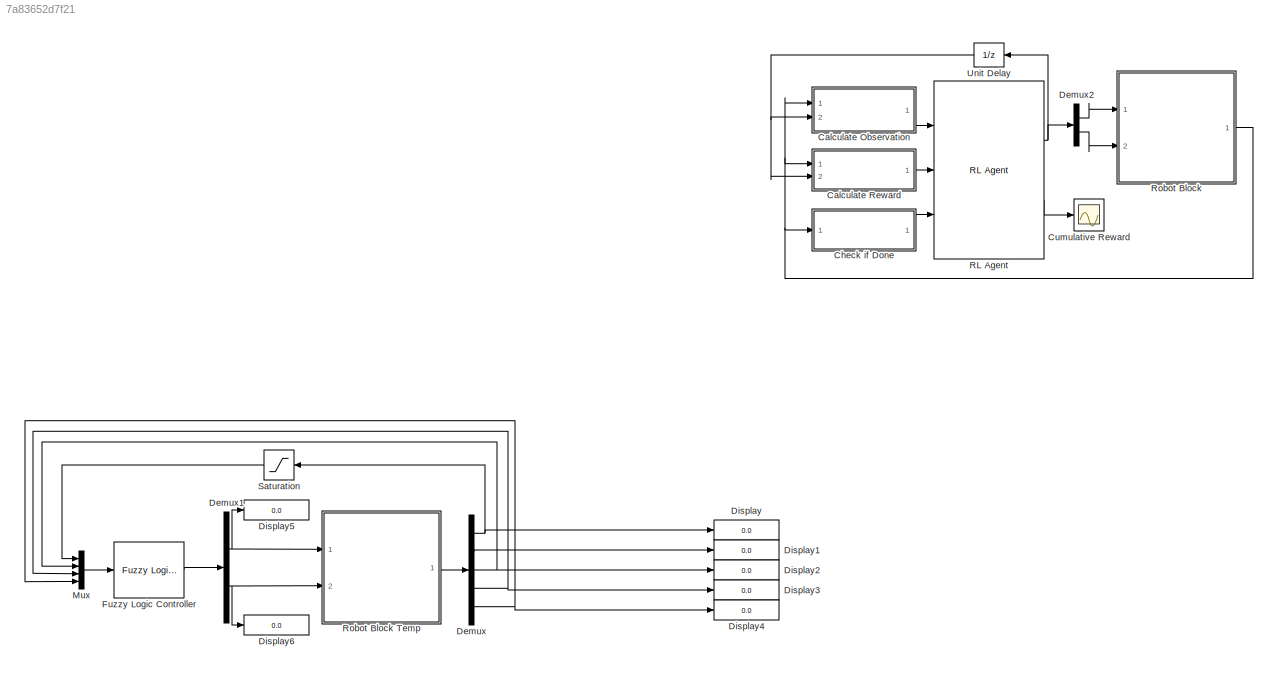
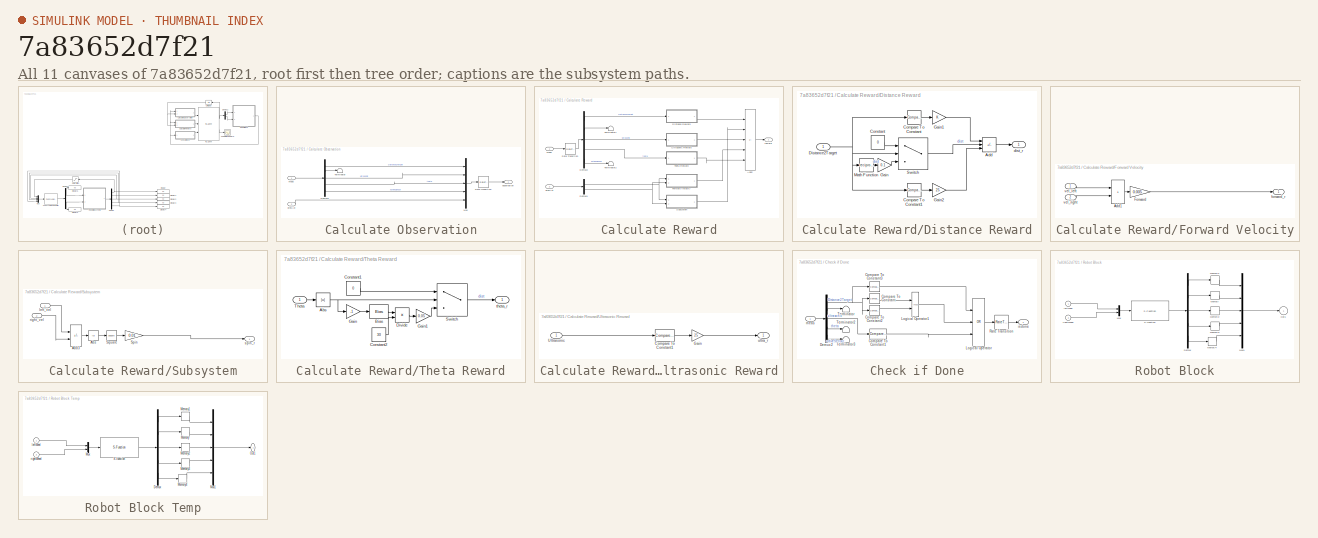
[diagram: thumbnail index - all 11 canvases of the model, root first then tree order]
MODEL slx_7a83652d7f21
KIND model
CONFIG AbsTol = auto
CONFIG EnableMultiTasking = off
CONFIG FixedStep = 0.050
CONFIG MaxStep = auto
CONFIG MinStep = auto
CONFIG RelTol = 1e-3
CONFIG SampleTimeConstraint = Unconstrained
CONFIG Solver = ode45
CONFIG SolverName = ode45
CONFIG StartTime = 0.0
CONFIG StopTime = inf
WORKSPACE source: mxarray member
WORKSPACE ANG = 2
WORKSPACE Sig: Simulink.Signal (value not decoded)
WORKSPACE Var = 0
WORKSPACE X = 1
WORKSPACE Y = 1
BLOCK [SubSystem] Calculate Observation
  Ports = [2, 1]
  RequestExecContextInheritance = off
BLOCK [Demux] Calculate Observation/Demux2
  Outputs = 5
  Ports = [1, 5]
BLOCK [Mux] Calculate Observation/Mux
  DisplayOption = bar
  Inputs = 5
  Ports = [5, 1]
BLOCK [RateTransition] Calculate Observation/Rate Transition
BLOCK [Terminator] Calculate Observation/Terminator
BLOCK [Inport] Calculate Observation/meas
BLOCK [Outport] Calculate Observation/observation
  VectorParamsAs1DForOutWhenUnconnected = off
BLOCK [Inport] Calculate Observation/prevAct
  Port = 2
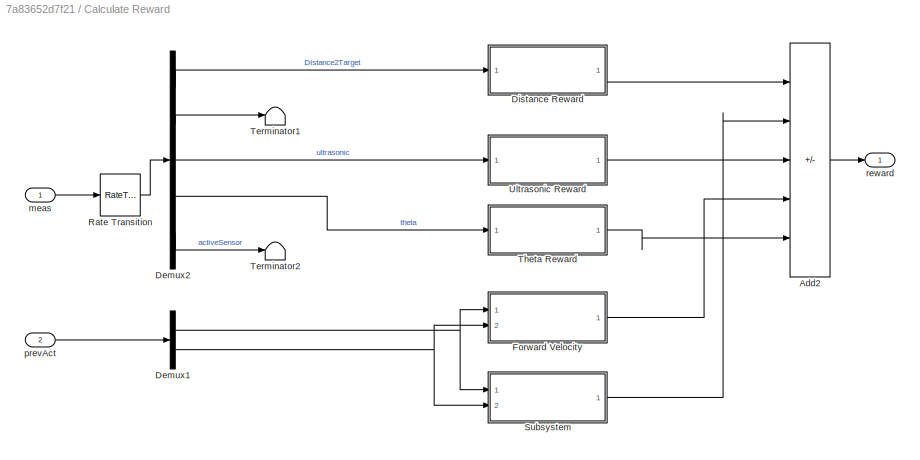
BLOCK [SubSystem] Calculate Reward
  Ports = [2, 1]
  RequestExecContextInheritance = off
BLOCK [Sum] Calculate Reward/Add2
  IconShape = rectangular
  Inputs = +--++
  Ports = [5, 1]
BLOCK [Demux] Calculate Reward/Demux1
  Outputs = 2
  Ports = [1, 2]
BLOCK [Demux] Calculate Reward/Demux2
  Outputs = 5
  Ports = [1, 5]
BLOCK [SubSystem] Calculate Reward/Distance Reward
  Ports = [1, 1]
  RequestExecContextInheritance = off
BLOCK [Sum] Calculate Reward/Distance Reward/Add
  IconShape = rectangular
  Inputs = -++
  Ports = [3, 1]
BLOCK [Reference] Calculate Reward/Distance Reward/Compare To Constant  REF=simulink/Logic and Bit
Operations/Compare
To Constant
  Ports = [1, 1]
  SourceBlock = simulink/Logic and Bit\nOperations/Compare\nTo Constant
  SourceProductBaseCode = SL
  SourceType = Compare To Constant
BLOCK [Reference] Calculate Reward/Distance Reward/Compare To Constant1  REF=simulink/Logic and Bit
Operations/Compare
To Constant
  Ports = [1, 1]
  SourceBlock = simulink/Logic and Bit\nOperations/Compare\nTo Constant
  SourceProductBaseCode = SL
  SourceType = Compare To Constant
BLOCK [Constant] Calculate Reward/Distance Reward/Constant
  Value = 0
BLOCK [Inport] Calculate Reward/Distance Reward/Distance2Target
BLOCK [Gain] Calculate Reward/Distance Reward/Gain
  Gain = 0.1
BLOCK [Gain] Calculate Reward/Distance Reward/Gain1
BLOCK [Gain] Calculate Reward/Distance Reward/Gain2
  Gain = 25
BLOCK [Math] Calculate Reward/Distance Reward/Math Function
  Operator = reciprocal
  Ports = [1, 1]
BLOCK [Switch] Calculate Reward/Distance Reward/Switch
  InputSameDT = off
  SaturateOnIntegerOverflow = off
  Threshold = 2
BLOCK [Outport] Calculate Reward/Distance Reward/dist_r
BLOCK [SubSystem] Calculate Reward/Forward Velocity
  Ports = [2, 1]
  RequestExecContextInheritance = off
BLOCK [Sum] Calculate Reward/Forward Velocity/Add1
  IconShape = rectangular
  Ports = [2, 1]
BLOCK [Gain] Calculate Reward/Forward Velocity/Forward
  Gain = 0.005
BLOCK [Outport] Calculate Reward/Forward Velocity/forward_r
BLOCK [Inport] Calculate Reward/Forward Velocity/vel_left
BLOCK [Inport] Calculate Reward/Forward Velocity/vel_right
  Port = 2
BLOCK [RateTransition] Calculate Reward/Rate Transition
  OutPortSampleTime = Ts
BLOCK [SubSystem] Calculate Reward/Subsystem
  Ports = [2, 1]
  RequestExecContextInheritance = off
BLOCK [Abs] Calculate Reward/Subsystem/Abs
  SaturateOnIntegerOverflow = off
BLOCK [Sum] Calculate Reward/Subsystem/Add3
  IconShape = rectangular
  Inputs = +-
  Ports = [2, 1]
BLOCK [Gain] Calculate Reward/Subsystem/Spin
  Gain = 0.01
BLOCK [Math] Calculate Reward/Subsystem/Square
  Operator = square
  Ports = [1, 1]
  RndMeth = Zero
  SignedPower = on
BLOCK [Inport] Calculate Reward/Subsystem/left_vel
BLOCK [Inport] Calculate Reward/Subsystem/right_vel
  Port = 2
BLOCK [Outport] Calculate Reward/Subsystem/spin_r
BLOCK [Terminator] Calculate Reward/Terminator1
BLOCK [Terminator] Calculate Reward/Terminator2
BLOCK [SubSystem] Calculate Reward/Theta Reward
  Ports = [1, 1]
  RequestExecContextInheritance = off
BLOCK [Abs] Calculate Reward/Theta Reward/Abs
  SaturateOnIntegerOverflow = off
BLOCK [Bias] Calculate Reward/Theta Reward/Bias
  Bias = 30
  SaturateOnIntegerOverflow = off
BLOCK [Constant] Calculate Reward/Theta Reward/Constant1
  Value = 0
BLOCK [Constant] Calculate Reward/Theta Reward/Constant2
  Value = 30
BLOCK [Product] Calculate Reward/Theta Reward/Divide
  Inputs = */
  Ports = [2, 1]
BLOCK [Gain] Calculate Reward/Theta Reward/Gain
  Gain = -1
BLOCK [Gain] Calculate Reward/Theta Reward/Gain1
  Gain = 0.05
BLOCK [Switch] Calculate Reward/Theta Reward/Switch
  InputSameDT = off
  SaturateOnIntegerOverflow = off
  Threshold = 30
BLOCK [Inport] Calculate Reward/Theta Reward/Theta
  NameLocation = left
BLOCK [Outport] Calculate Reward/Theta Reward/theta_r
BLOCK [SubSystem] Calculate Reward/Ultrasonic Reward
  Ports = [1, 1]
  RequestExecContextInheritance = off
BLOCK [Reference] Calculate Reward/Ultrasonic Reward/Compare To Constant1  REF=simulink/Logic and Bit
Operations/Compare
To Constant
  Ports = [1, 1]
  SourceBlock = simulink/Logic and Bit\nOperations/Compare\nTo Constant
  SourceProductBaseCode = SL
  SourceType = Compare To Constant
BLOCK [Gain] Calculate Reward/Ultrasonic Reward/Gain
  Gain = 25
BLOCK [Inport] Calculate Reward/Ultrasonic Reward/Ultrasonic
BLOCK [Outport] Calculate Reward/Ultrasonic Reward/ultra_r
BLOCK [Inport] Calculate Reward/meas
BLOCK [Inport] Calculate Reward/prevAct
  Port = 2
BLOCK [Outport] Calculate Reward/reward
  VectorParamsAs1DForOutWhenUnconnected = off
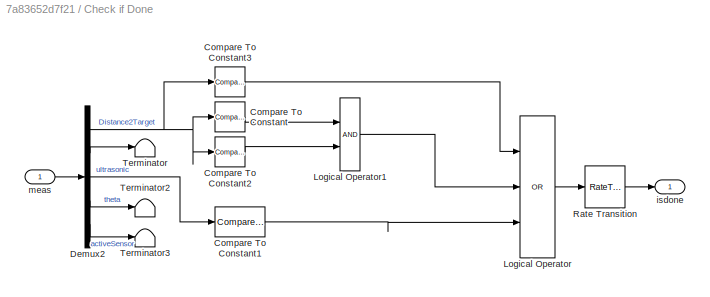
BLOCK [SubSystem] Check if Done
  Ports = [1, 1]
  RequestExecContextInheritance = off
BLOCK [Reference] Check if Done/Compare To Constant  REF=simulink/Logic and Bit
Operations/Compare
To Constant
  Ports = [1, 1]
  SourceBlock = simulink/Logic and Bit\nOperations/Compare\nTo Constant
  SourceProductBaseCode = SL
  SourceType = Compare To Constant
BLOCK [Reference] Check if Done/Compare To Constant1  REF=simulink/Logic and Bit
Operations/Compare
To Constant
  Ports = [1, 1]
  SourceBlock = simulink/Logic and Bit\nOperations/Compare\nTo Constant
  SourceProductBaseCode = SL
  SourceType = Compare To Constant
BLOCK [Reference] Check if Done/Compare To Constant2  REF=simulink/Logic and Bit
Operations/Compare
To Constant
  Ports = [1, 1]
  SourceBlock = simulink/Logic and Bit\nOperations/Compare\nTo Constant
  SourceProductBaseCode = SL
  SourceType = Compare To Constant
BLOCK [Reference] Check if Done/Compare To Constant3  REF=simulink/Logic and Bit
Operations/Compare
To Constant
  Ports = [1, 1]
  SourceBlock = simulink/Logic and Bit\nOperations/Compare\nTo Constant
  SourceProductBaseCode = SL
  SourceType = Compare To Constant
BLOCK [Demux] Check if Done/Demux2
  Outputs = 5
  Ports = [1, 5]
BLOCK [Logic] Check if Done/Logical Operator
  AllPortsSameDT = off
  Inputs = 3
  Operator = OR
  OutDataTypeStr = boolean
  Ports = [3, 1]
BLOCK [Logic] Check if Done/Logical Operator1
  AllPortsSameDT = off
  OutDataTypeStr = boolean
  Ports = [2, 1]
BLOCK [RateTransition] Check if Done/Rate Transition
BLOCK [Terminator] Check if Done/Terminator
BLOCK [Terminator] Check if Done/Terminator2
BLOCK [Terminator] Check if Done/Terminator3
BLOCK [Outport] Check if Done/isdone
  VectorParamsAs1DForOutWhenUnconnected = off
BLOCK [Inport] Check if Done/meas
BLOCK [Scope] Cumulative Reward
  Floating = off
  NumInputPorts = 1
  Ports = [1]
  ScopeSpecificationString = Simulink.scopes.TimeScopeBlockCfg('CurrentConfiguration', extmgr.ConfigurationSet(extmgr.Configuration('Core','General UI',true),extmgr.Configuration('Core','Source UI',true),extmgr.Configuration('Sources','WiredSimulink',true),extmgr.Configuration('Visuals','Time Domain',true,'SerializedDisplays',{struct('MinYLimReal','-13.85938','MaxYLimReal','11.86562','YLabelReal','','MinYLimMag','0.00000','Ma...<+1391ch>
BLOCK [Demux] Demux
  Commented = on
  Outputs = 5
  Ports = [1, 5]
BLOCK [Demux] Demux1
  Commented = on
  Outputs = 2
  Ports = [1, 2]
BLOCK [Demux] Demux2
  Outputs = 2
  Ports = [1, 2]
BLOCK [Display] Display
  Commented = on
  Decimation = 1
  Ports = [1]
BLOCK [Display] Display1
  Commented = on
  Decimation = 1
  Ports = [1]
BLOCK [Display] Display2
  Commented = on
  Decimation = 1
  Ports = [1]
BLOCK [Display] Display3
  Commented = on
  Decimation = 1
  Ports = [1]
BLOCK [Display] Display4
  Commented = on
  Decimation = 1
  Ports = [1]
BLOCK [Display] Display5
  Commented = on
  Decimation = 1
  Ports = [1]
BLOCK [Display] Display6
  Commented = on
  Decimation = 1
  Ports = [1]
BLOCK [Reference] Fuzzy Logic Controller  REF=fuzblock/Fuzzy Logic   (lib defined in mdl_858b3b3e7478)
Controller
  Commented = on
  Ports = [1, 1]
  SourceBlock = fuzblock/Fuzzy Logic \nController
  SourceProductBaseCode = FL
  SourceType = Fuzzy Inference System
BLOCK [Mux] Mux
  Commented = on
  DisplayOption = bar
  Ports = [4, 1]
BLOCK [Reference] RL Agent  REF=rllib/RL Agent
  Ports = [3, 2]
  SourceBlock = rllib/RL Agent
  SourceProductName = Reinforcement Learning
  SourceType = RL Agent
BLOCK [SubSystem] Robot Block
  Ports = [2, 1]
  RequestExecContextInheritance = off
BLOCK [SubSystem] Robot Block Temp
  Commented = on
  Ports = [2, 1]
  RequestExecContextInheritance = off
BLOCK [Demux] Robot Block Temp/Demux
  Outputs = 5
  Ports = [1, 5]
BLOCK [Memory] Robot Block Temp/Memory
BLOCK [Memory] Robot Block Temp/Memory1
  InitialCondition = 1000
BLOCK [Memory] Robot Block Temp/Memory2
BLOCK [Memory] Robot Block Temp/Memory3
BLOCK [Memory] Robot Block Temp/Memory4
BLOCK [Mux] Robot Block Temp/Mux
  DisplayOption = bar
  Inputs = 2
  Ports = [2, 1]
BLOCK [Mux] Robot Block Temp/Mux1
  DisplayOption = bar
  Inputs = 5
  Ports = [5, 1]
BLOCK [Outport] Robot Block Temp/Out1
  IconDisplay = Port number and signal name
BLOCK [S-Function] Robot Block Temp/S-function
  EnableBusSupport = off
  FunctionName = roboanimate_org
  Parameters = stObj
  Ports = [1, 1]
  SFcnIsStateOwnerBlock = off
  SFunctionDeploymentMode = off
BLOCK [Inport] Robot Block Temp/leftWeel
BLOCK [Inport] Robot Block Temp/rightWheel
  Port = 2
BLOCK [Demux] Robot Block/Demux
  Outputs = 5
  Ports = [1, 5]
BLOCK [Memory] Robot Block/Memory
BLOCK [Memory] Robot Block/Memory1
  InitialCondition = 1000
BLOCK [Memory] Robot Block/Memory2
BLOCK [Memory] Robot Block/Memory3
BLOCK [Memory] Robot Block/Memory4
BLOCK [Mux] Robot Block/Mux
  DisplayOption = bar
  Inputs = 2
  Ports = [2, 1]
BLOCK [Mux] Robot Block/Mux1
  DisplayOption = bar
  Inputs = 5
  Ports = [5, 1]
BLOCK [Outport] Robot Block/Out1
  IconDisplay = Port number and signal name
BLOCK [S-Function] Robot Block/S-function
  EnableBusSupport = off
  FunctionName = roboanimate_org
  Parameters = stObj
  Ports = [1, 1]
  SFcnIsStateOwnerBlock = off
  SFunctionDeploymentMode = off
BLOCK [Inport] Robot Block/leftWeel
BLOCK [Inport] Robot Block/rightWheel
  Port = 2
BLOCK [Saturate] Saturation
  Commented = on
  UpperLimit = 10
BLOCK [UnitDelay] Unit Delay
  HasFrameUpgradeWarning = on
  SampleTime = -1
LINE Calculate Observation/Demux2:1 -> Calculate Observation/Mux:1
LINE Calculate Observation/Demux2:2 -> Calculate Observation/Terminator:1
LINE Calculate Observation/Demux2:3 -> Calculate Observation/Mux:2
LINE Calculate Observation/Demux2:4 -> Calculate Observation/Mux:3
LINE Calculate Observation/Demux2:5 -> Calculate Observation/Mux:4
LINE Calculate Observation/Mux:1 -> Calculate Observation/Rate Transition:1
LINE Calculate Observation/Rate Transition:1 -> Calculate Observation/observation:1
LINE Calculate Observation/meas:1 -> Calculate Observation/Demux2:1
LINE Calculate Observation/prevAct:1 -> Calculate Observation/Mux:5
LINE Calculate Observation:1 -> RL Agent:1
LINE Calculate Reward/Add2:1 -> Calculate Reward/reward:1
NET Calculate Reward/Demux1:1 -> Calculate Reward/Forward Velocity:1, Calculate Reward/Subsystem:1
NET Calculate Reward/Demux1:2 -> Calculate Reward/Forward Velocity:2, Calculate Reward/Subsystem:2
LINE Calculate Reward/Demux2:1 -> Calculate Reward/Distance Reward:1
LINE Calculate Reward/Demux2:2 -> Calculate Reward/Terminator1:1
LINE Calculate Reward/Demux2:3 -> Calculate Reward/Ultrasonic Reward:1
LINE Calculate Reward/Demux2:4 -> Calculate Reward/Theta Reward:1
LINE Calculate Reward/Demux2:5 -> Calculate Reward/Terminator2:1
LINE Calculate Reward/Distance Reward/Add:1 -> Calculate Reward/Distance Reward/dist_r:1
LINE Calculate Reward/Distance Reward/Compare To Constant1:1 -> Calculate Reward/Distance Reward/Gain2:1
LINE Calculate Reward/Distance Reward/Compare To Constant:1 -> Calculate Reward/Distance Reward/Gain1:1
LINE Calculate Reward/Distance Reward/Constant:1 -> Calculate Reward/Distance Reward/Switch:1
NET Calculate Reward/Distance Reward/Distance2Target:1 -> Calculate Reward/Distance Reward/Compare To Constant1:1, Calculate Reward/Distance Reward/Compare To Constant:1, Calculate Reward/Distance Reward/Math Function:1, Calculate Reward/Distance Reward/Switch:2
LINE Calculate Reward/Distance Reward/Gain1:1 -> Calculate Reward/Distance Reward/Add:1
LINE Calculate Reward/Distance Reward/Gain2:1 -> Calculate Reward/Distance Reward/Add:3
LINE Calculate Reward/Distance Reward/Gain:1 -> Calculate Reward/Distance Reward/Switch:3
LINE Calculate Reward/Distance Reward/Math Function:1 -> Calculate Reward/Distance Reward/Gain:1
LINE Calculate Reward/Distance Reward/Switch:1 -> Calculate Reward/Distance Reward/Add:2
LINE Calculate Reward/Distance Reward:1 -> Calculate Reward/Add2:1
LINE Calculate Reward/Forward Velocity/Add1:1 -> Calculate Reward/Forward Velocity/Forward:1
LINE Calculate Reward/Forward Velocity/Forward:1 -> Calculate Reward/Forward Velocity/forward_r:1
LINE Calculate Reward/Forward Velocity/vel_left:1 -> Calculate Reward/Forward Velocity/Add1:1
LINE Calculate Reward/Forward Velocity/vel_right:1 -> Calculate Reward/Forward Velocity/Add1:2
LINE Calculate Reward/Forward Velocity:1 -> Calculate Reward/Add2:4
LINE Calculate Reward/Rate Transition:1 -> Calculate Reward/Demux2:1
LINE Calculate Reward/Subsystem/Abs:1 -> Calculate Reward/Subsystem/Square:1
LINE Calculate Reward/Subsystem/Add3:1 -> Calculate Reward/Subsystem/Abs:1
LINE Calculate Reward/Subsystem/Spin:1 -> Calculate Reward/Subsystem/spin_r:1
LINE Calculate Reward/Subsystem/Square:1 -> Calculate Reward/Subsystem/Spin:1
LINE Calculate Reward/Subsystem/left_vel:1 -> Calculate Reward/Subsystem/Add3:1
LINE Calculate Reward/Subsystem/right_vel:1 -> Calculate Reward/Subsystem/Add3:2
LINE Calculate Reward/Subsystem:1 -> Calculate Reward/Add2:2
NET Calculate Reward/Theta Reward/Abs:1 -> Calculate Reward/Theta Reward/Gain:1, Calculate Reward/Theta Reward/Switch:2
LINE Calculate Reward/Theta Reward/Bias:1 -> Calculate Reward/Theta Reward/Divide:1
LINE Calculate Reward/Theta Reward/Constant1:1 -> Calculate Reward/Theta Reward/Switch:1
LINE Calculate Reward/Theta Reward/Constant2:1 -> Calculate Reward/Theta Reward/Divide:2
LINE Calculate Reward/Theta Reward/Divide:1 -> Calculate Reward/Theta Reward/Gain1:1
LINE Calculate Reward/Theta Reward/Gain1:1 -> Calculate Reward/Theta Reward/Switch:3
LINE Calculate Reward/Theta Reward/Gain:1 -> Calculate Reward/Theta Reward/Bias:1
LINE Calculate Reward/Theta Reward/Switch:1 -> Calculate Reward/Theta Reward/theta_r:1
LINE Calculate Reward/Theta Reward/Theta:1 -> Calculate Reward/Theta Reward/Abs:1
LINE Calculate Reward/Theta Reward:1 -> Calculate Reward/Add2:5
LINE Calculate Reward/Ultrasonic Reward/Compare To Constant1:1 -> Calculate Reward/Ultrasonic Reward/Gain:1
LINE Calculate Reward/Ultrasonic Reward/Gain:1 -> Calculate Reward/Ultrasonic Reward/ultra_r:1
LINE Calculate Reward/Ultrasonic Reward/Ultrasonic:1 -> Calculate Reward/Ultrasonic Reward/Compare To Constant1:1
LINE Calculate Reward/Ultrasonic Reward:1 -> Calculate Reward/Add2:3
LINE Calculate Reward/meas:1 -> Calculate Reward/Rate Transition:1
LINE Calculate Reward/prevAct:1 -> Calculate Reward/Demux1:1
LINE Calculate Reward:1 -> RL Agent:2
LINE Check if Done/Compare To Constant1:1 -> Check if Done/Logical Operator:3
LINE Check if Done/Compare To Constant2:1 -> Check if Done/Logical Operator1:2
LINE Check if Done/Compare To Constant3:1 -> Check if Done/Logical Operator:1
LINE Check if Done/Compare To Constant:1 -> Check if Done/Logical Operator1:1
NET Check if Done/Demux2:1 -> Check if Done/Compare To Constant2:1, Check if Done/Compare To Constant3:1, Check if Done/Compare To Constant:1
LINE Check if Done/Demux2:2 -> Check if Done/Terminator:1
LINE Check if Done/Demux2:3 -> Check if Done/Compare To Constant1:1
LINE Check if Done/Demux2:4 -> Check if Done/Terminator2:1
LINE Check if Done/Demux2:5 -> Check if Done/Terminator3:1
LINE Check if Done/Logical Operator1:1 -> Check if Done/Logical Operator:2
LINE Check if Done/Logical Operator:1 -> Check if Done/Rate Transition:1
LINE Check if Done/Rate Transition:1 -> Check if Done/isdone:1
LINE Check if Done/meas:1 -> Check if Done/Demux2:1
LINE Check if Done:1 -> RL Agent:3
NET Demux1:1 -> Display5:1, Robot Block Temp:1
NET Demux1:2 -> Display6:1, Robot Block Temp:2
LINE Demux2:1 -> Robot Block:1
LINE Demux2:2 -> Robot Block:2
NET Demux:1 -> Display:1, Saturation:1
LINE Demux:2 -> Display1:1
NET Demux:3 -> Display2:1, Mux:2
NET Demux:4 -> Display3:1, Mux:3
NET Demux:5 -> Display4:1, Mux:4
LINE Fuzzy Logic Controller:1 -> Demux1:1
LINE Mux:1 -> Fuzzy Logic Controller:1
NET RL Agent:1 -> Demux2:1, Unit Delay:1
LINE RL Agent:2 -> Cumulative Reward:1
LINE Robot Block Temp/Demux:1 -> Robot Block Temp/Memory1:1
LINE Robot Block Temp/Demux:2 -> Robot Block Temp/Memory:1
LINE Robot Block Temp/Demux:3 -> Robot Block Temp/Memory2:1
LINE Robot Block Temp/Demux:4 -> Robot Block Temp/Memory3:1
LINE Robot Block Temp/Demux:5 -> Robot Block Temp/Memory4:1
LINE Robot Block Temp/Memory1:1 -> Robot Block Temp/Mux1:1
LINE Robot Block Temp/Memory2:1 -> Robot Block Temp/Mux1:3
LINE Robot Block Temp/Memory3:1 -> Robot Block Temp/Mux1:4
LINE Robot Block Temp/Memory4:1 -> Robot Block Temp/Mux1:5
LINE Robot Block Temp/Memory:1 -> Robot Block Temp/Mux1:2
LINE Robot Block Temp/Mux1:1 -> Robot Block Temp/Out1:1
LINE Robot Block Temp/Mux:1 -> Robot Block Temp/S-function:1
LINE Robot Block Temp/S-function:1 -> Robot Block Temp/Demux:1
LINE Robot Block Temp/leftWeel:1 -> Robot Block Temp/Mux:1
LINE Robot Block Temp/rightWheel:1 -> Robot Block Temp/Mux:2
LINE Robot Block Temp:1 -> Demux:1
LINE Robot Block/Demux:1 -> Robot Block/Memory1:1
LINE Robot Block/Demux:2 -> Robot Block/Memory:1
LINE Robot Block/Demux:3 -> Robot Block/Memory2:1
LINE Robot Block/Demux:4 -> Robot Block/Memory3:1
LINE Robot Block/Demux:5 -> Robot Block/Memory4:1
LINE Robot Block/Memory1:1 -> Robot Block/Mux1:1
LINE Robot Block/Memory2:1 -> Robot Block/Mux1:3
LINE Robot Block/Memory3:1 -> Robot Block/Mux1:4
LINE Robot Block/Memory4:1 -> Robot Block/Mux1:5
LINE Robot Block/Memory:1 -> Robot Block/Mux1:2
LINE Robot Block/Mux1:1 -> Robot Block/Out1:1
LINE Robot Block/Mux:1 -> Robot Block/S-function:1
LINE Robot Block/S-function:1 -> Robot Block/Demux:1
LINE Robot Block/leftWeel:1 -> Robot Block/Mux:1
LINE Robot Block/rightWheel:1 -> Robot Block/Mux:2
NET Robot Block:1 -> Calculate Observation:1, Calculate Reward:1, Check if Done:1
LINE Saturation:1 -> Mux:1
NET Unit Delay:1 -> Calculate Observation:2, Calculate Reward:2
note: NET lines group one-source signal fan-out (src -> all destinations, sorted); 1:1 wires keep LINE
